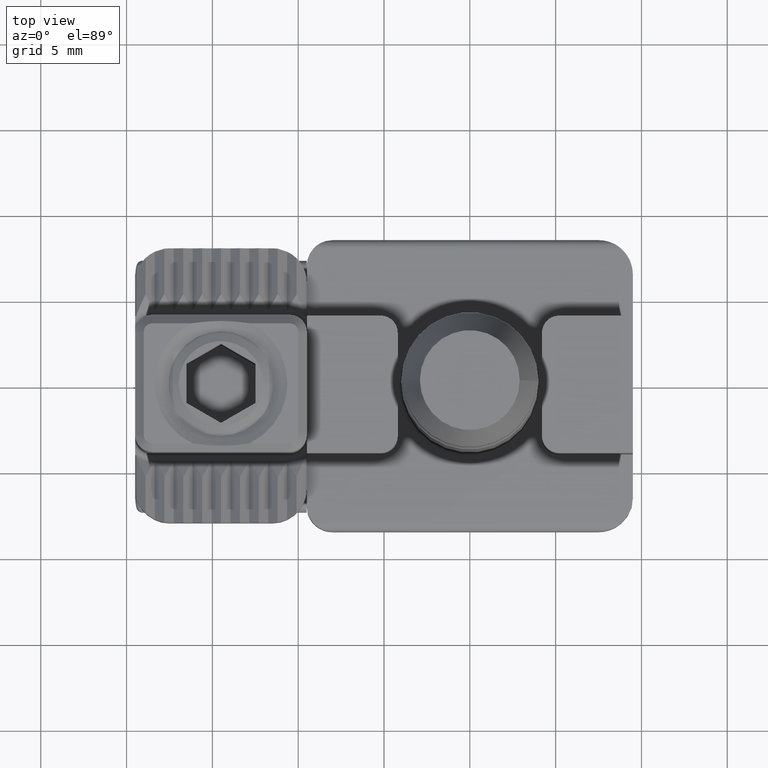
[diagram: clean part render]
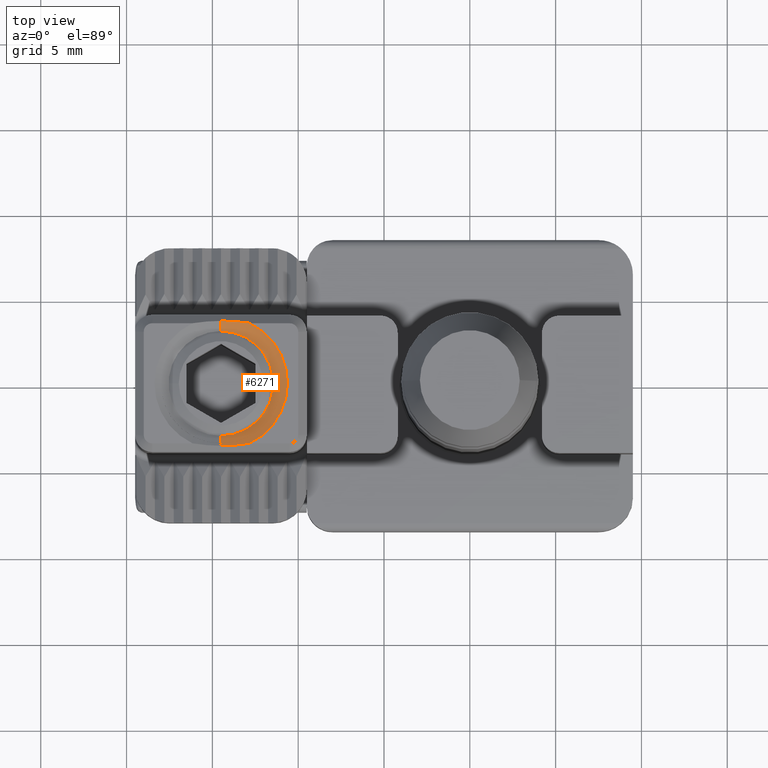
[diagram: same view with one face highlighted and labeled with its STEP entity id]
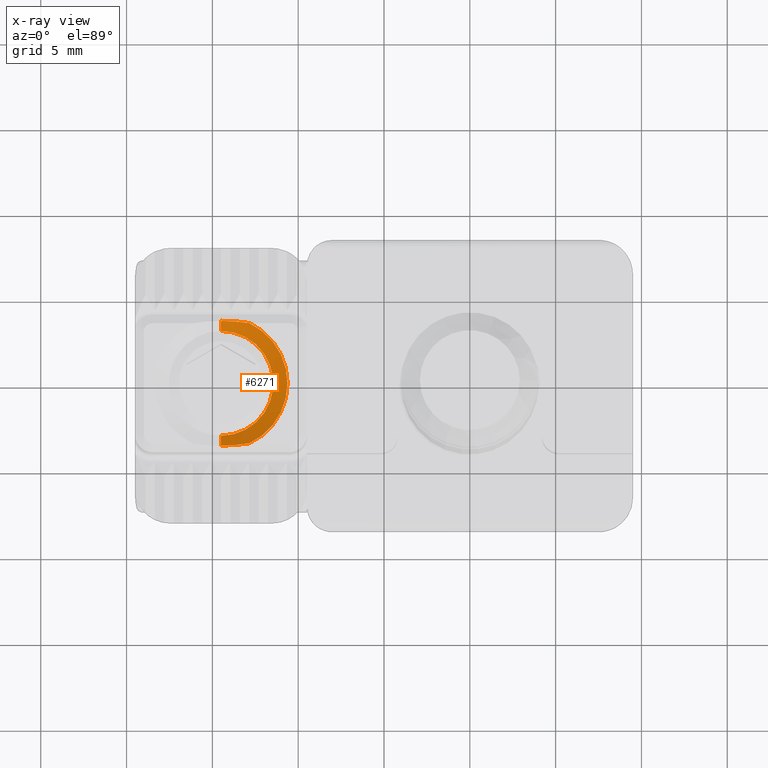
[diagram: x-ray of the same camera — body ghosted, the highlighted face saturated]
A machine part, top view. The second image highlights one B-rep face of the part: STEP entity #6271.
The next image is the same camera in x-ray: the body ghosted, the highlighted face saturated — about 0% of this face is hidden behind the body in this view.
In plain terms, the highlighted conical surface has half-angle 60 deg.
Its self-contained STEP definition (entity closure, byte-faithful):
#3690=CARTESIAN_POINT('',(0.E0,1.E1,0.E0));
#3691=DIRECTION('',(0.E0,1.E0,0.E0));
#3692=DIRECTION('',(9.032258064516E-1,0.E0,-4.291656353436E-1));
#3693=AXIS2_PLACEMENT_3D('',#3690,#3691,#3692);
#3706=CARTESIAN_POINT('',(0.E0,9.523686027919E0,0.E0));
#3707=DIRECTION('',(0.E0,1.E0,0.E0));
#3708=DIRECTION('',(1.E0,0.E0,0.E0));
#3709=AXIS2_PLACEMENT_3D('',#3706,#3707,#3708);
#3714=CARTESIAN_POINT('',(3.637259526419E0,9.862740473581E0,0.E0));
#3715=CARTESIAN_POINT('',(3.637259526419E0,9.862740473581E0,
-1.882693584858E-1));
#3716=CARTESIAN_POINT('',(3.626569126705E0,9.873430873295E0,
-5.624905735260E-1));
#3717=CARTESIAN_POINT('',(3.579597595983E0,9.920402404017E0,-1.118716188711E0));
#3718=CARTESIAN_POINT('',(3.529407663501E0,9.970592336499E0,-1.482440105001E0));
#3719=CARTESIAN_POINT('',(3.5E0,1.E1,-1.663016836956E0));
#3829=CARTESIAN_POINT('',(-3.5E0,1.E1,-1.663016836956E0));
#3830=CARTESIAN_POINT('',(-3.529459607008E0,9.970540392992E0,
-1.482121147708E0));
#3831=CARTESIAN_POINT('',(-3.579684500699E0,9.920315499301E0,
-1.117963734876E0));
#3832=CARTESIAN_POINT('',(-3.626592443719E0,9.873407556281E0,
-5.619496066395E-1));
#3833=CARTESIAN_POINT('',(-3.637259526419E0,9.862740473581E0,
-1.880383310941E-1));
#3834=CARTESIAN_POINT('',(-3.637259526419E0,9.862740473581E0,0.E0));
#3877=DIRECTION('',(-8.660254037844E-1,5.E-1,0.E0));
#3878=VECTOR('',#3877,6.781088913246E-1);
#3879=CARTESIAN_POINT('',(-3.05E0,9.523686027919E0,0.E0));
#3880=LINE('',#3879,#3878);
#3892=DIRECTION('',(8.660254037844E-1,5.E-1,0.E0));
#3893=VECTOR('',#3892,6.781088913246E-1);
#3894=CARTESIAN_POINT('',(3.05E0,9.523686027919E0,0.E0));
#3895=LINE('',#3894,#3893);
#5351=CARTESIAN_POINT('',(3.05E0,9.523686027919E0,0.E0));
#5353=VERTEX_POINT('',#5351);
#5355=CARTESIAN_POINT('',(-3.05E0,9.523686027919E0,0.E0));
#5357=VERTEX_POINT('',#5355);
#5362=CARTESIAN_POINT('',(3.5E0,1.E1,-1.663016836956E0));
#5363=CARTESIAN_POINT('',(-3.5E0,1.E1,-1.663016836956E0));
#5364=VERTEX_POINT('',#5362);
#5365=VERTEX_POINT('',#5363);
#5370=VERTEX_POINT('',#3834);
#5371=VERTEX_POINT('',#3714);
#6253=CARTESIAN_POINT('',(0.E0,9.761843013959E0,0.E0));
#6254=DIRECTION('',(0.E0,1.E0,0.E0));
#6255=DIRECTION('',(1.E0,0.E0,0.E0));
#6256=AXIS2_PLACEMENT_3D('',#6253,#6254,#6255);
#6257=CONICAL_SURFACE('',#6256,3.4625E0,6.E1);
#6258=ORIENTED_EDGE('',*,*,#6219,.F.);
#6260=ORIENTED_EDGE('',*,*,#6259,.F.);
#6262=ORIENTED_EDGE('',*,*,#6261,.F.);
#6264=ORIENTED_EDGE('',*,*,#6263,.T.);
#6266=ORIENTED_EDGE('',*,*,#6265,.T.);
#6268=ORIENTED_EDGE('',*,*,#6267,.F.);
#6269=EDGE_LOOP('',(#6258,#6260,#6262,#6264,#6266,#6268));
#6270=FACE_OUTER_BOUND('',#6269,.F.);
#6271=ADVANCED_FACE('',(#6270),#6257,.F.);
#3694=CIRCLE('',#3693,3.875E0);
#3710=CIRCLE('',#3709,3.05E0);
#3720=B_SPLINE_CURVE_WITH_KNOTS('',3,(#3714,#3715,#3716,#3717,#3718,#3719),
.UNSPECIFIED.,.F.,.F.,(4,1,1,4),(0.E0,3.333333333333E-1,6.666666666667E-1,1.E0),
.UNSPECIFIED.);
#3835=B_SPLINE_CURVE_WITH_KNOTS('',3,(#3829,#3830,#3831,#3832,#3833,#3834),
.UNSPECIFIED.,.F.,.F.,(4,1,1,4),(0.E0,3.333333333333E-1,6.666666666667E-1,1.E0),
.UNSPECIFIED.);
#6219=EDGE_CURVE('',#5364,#5365,#3694,.T.);
#6259=EDGE_CURVE('',#5371,#5364,#3720,.T.);
#6261=EDGE_CURVE('',#5353,#5371,#3895,.T.);
#6263=EDGE_CURVE('',#5353,#5357,#3710,.T.);
#6265=EDGE_CURVE('',#5357,#5370,#3880,.T.);
#6267=EDGE_CURVE('',#5365,#5370,#3835,.T.);